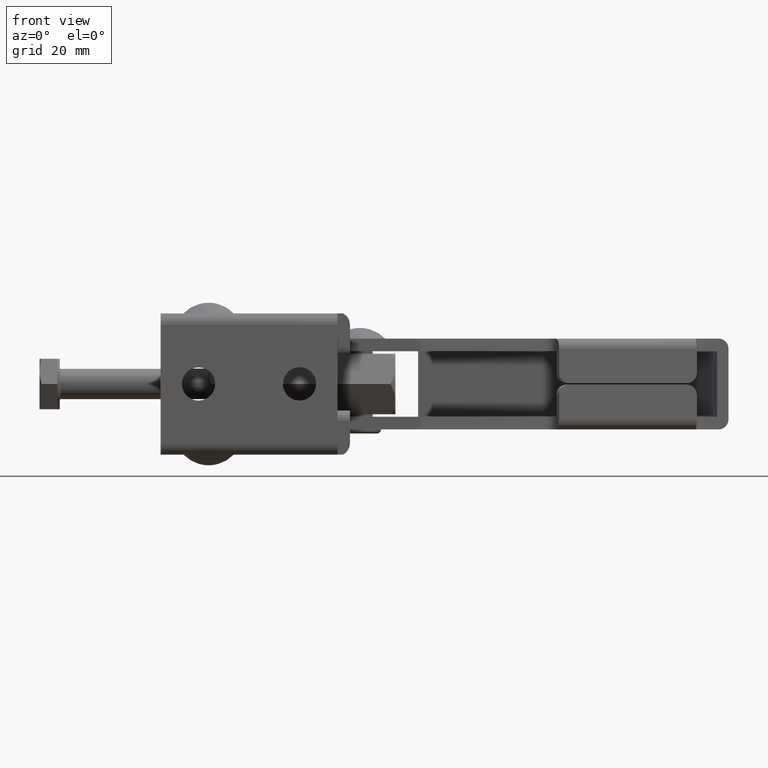
[diagram: clean part render]
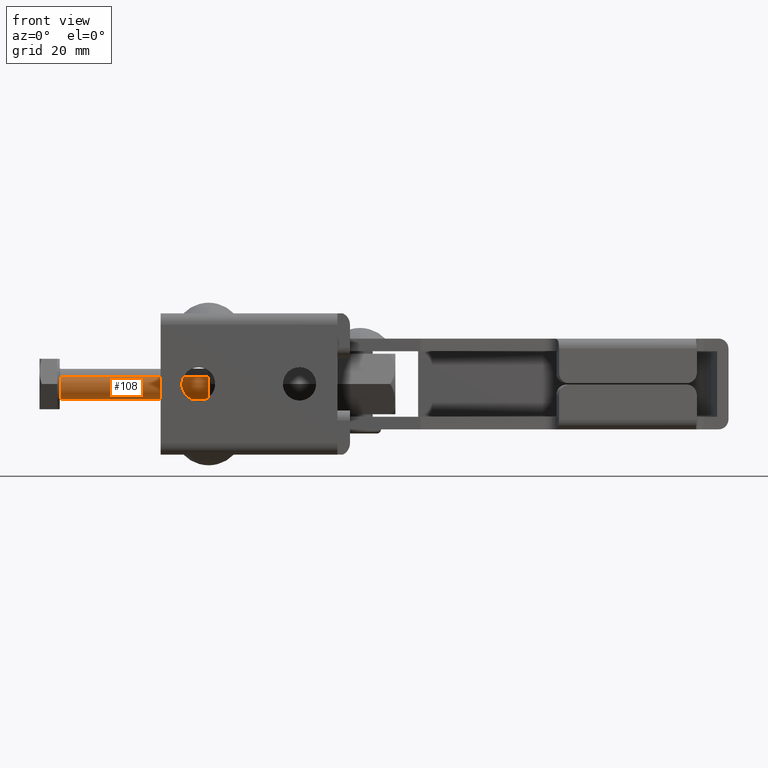
[diagram: same view with one face highlighted and labeled with its STEP entity id]
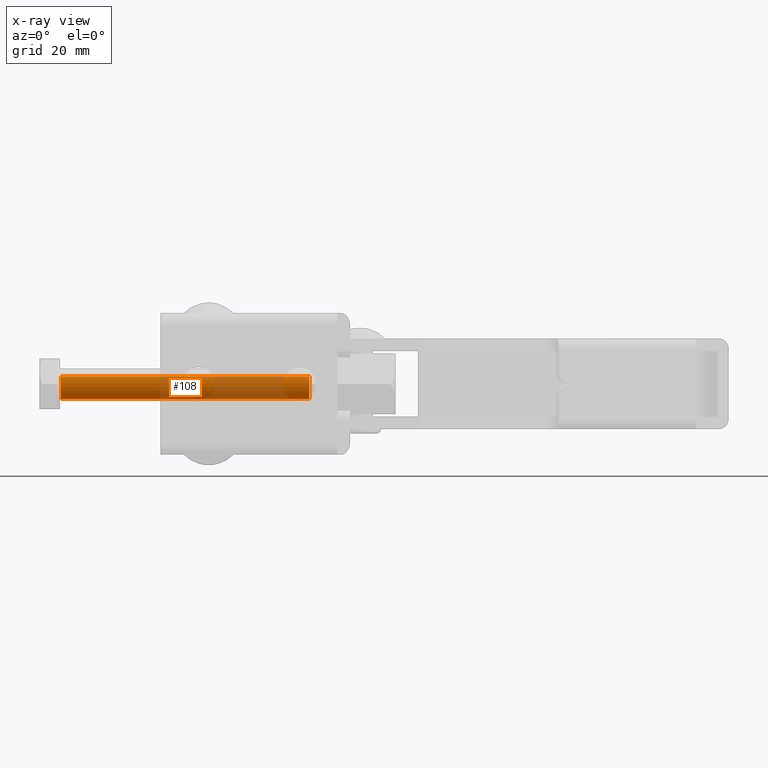
[diagram: x-ray of the same camera — body ghosted, the highlighted face saturated]
A machine part, front view. The second image highlights one B-rep face of the part: STEP entity #108.
The next image is the same camera in x-ray: the body ghosted, the highlighted face saturated — about 38% of this face is hidden behind the body in this view.
In plain terms, the highlighted cylindrical surface (edge-blend (fillet) strip) has radius 3 mm, axis along (-1, -0, -0).
Its self-contained STEP definition (entity closure, byte-faithful):
#108 = ADVANCED_FACE ( 'NONE', ( #5896 ), #5722, .T. ) ;
#298 = AXIS2_PLACEMENT_3D ( 'NONE', #6493, #3210, #7047 ) ;
#593 = DIRECTION ( 'NONE',  ( -1.000000000000000000, -3.302717421991266400E-030, -1.084683744678891200E-030 ) ) ;
#595 = CARTESIAN_POINT ( 'NONE',  ( -41.50000000000001400, 22.00000000000000400, 3.541791424061273700E-015 ) ) ;
#612 = DIRECTION ( 'NONE',  ( -1.000000000000000000, -3.302717421991266400E-030, -1.084683744678891200E-030 ) ) ;
#1081 = CARTESIAN_POINT ( 'NONE',  ( 11.94549999999999000, 24.59807621135331600, -1.500000000000000000 ) ) ;
#1727 = CARTESIAN_POINT ( 'NONE',  ( 11.94549999999999000, 19.40192378864668800, 1.500000000000006900 ) ) ;
#1846 = VERTEX_POINT ( 'NONE', #5636 ) ;
#2094 = CIRCLE ( 'NONE', #298, 3.000000000000000400 ) ;
#2222 = EDGE_CURVE ( 'NONE', #6963, #3087, #5788, .T. ) ;
#2270 = CARTESIAN_POINT ( 'NONE',  ( -41.50000000000001400, 24.59807621135331600, -1.499999999999999600 ) ) ;
#2688 = CARTESIAN_POINT ( 'NONE',  ( -41.50000000000001400, 19.40192378864668800, 1.500000000000006900 ) ) ;
#2700 = EDGE_CURVE ( 'NONE', #6656, #1846, #2094, .T. ) ;
#2817 = VECTOR ( 'NONE', #612, 1000.000000000000000 ) ;
#2956 = CARTESIAN_POINT ( 'NONE',  ( -37.25000000000002100, 19.40192378864668800, 1.500000000000007300 ) ) ;
#2989 = LINE ( 'NONE', #2688, #4268 ) ;
#3087 = VERTEX_POINT ( 'NONE', #1727 ) ;
#3210 = DIRECTION ( 'NONE',  ( 1.000000000000000000, 3.302717421991266400E-030, 1.084683744678891200E-030 ) ) ;
#3310 = ORIENTED_EDGE ( 'NONE', *, *, #6329, .F. ) ;
#3875 = CARTESIAN_POINT ( 'NONE',  ( 11.94549999999999000, 22.00000000000000400, 3.541791424061331300E-015 ) ) ;
#4268 = VECTOR ( 'NONE', #5960, 1000.000000000000000 ) ;
#4437 = DIRECTION ( 'NONE',  ( 0.0000000000000000000, -0.8660254037844381500, 0.5000000000000011100 ) ) ;
#4959 = DIRECTION ( 'NONE',  ( -1.000000000000000000, -3.302717421991266400E-030, -1.084683744678891200E-030 ) ) ;
#4986 = DIRECTION ( 'NONE',  ( 0.0000000000000000000, -0.8660254037844381500, 0.5000000000000011100 ) ) ;
#5003 = AXIS2_PLACEMENT_3D ( 'NONE', #595, #4959, #4986 ) ;
#5049 = ORIENTED_EDGE ( 'NONE', *, *, #2222, .T. ) ;
#5080 = ORIENTED_EDGE ( 'NONE', *, *, #2700, .T. ) ;
#5177 = EDGE_LOOP ( 'NONE', ( #3310, #5049, #6793, #5080 ) ) ;
#5466 = AXIS2_PLACEMENT_3D ( 'NONE', #3875, #593, #4437 ) ;
#5636 = CARTESIAN_POINT ( 'NONE',  ( -37.25000000000002100, 24.59807621135331600, -1.500000000000000000 ) ) ;
#5722 = CYLINDRICAL_SURFACE ( 'NONE', #5003, 3.000000000000000400 ) ;
#5788 = CIRCLE ( 'NONE', #5466, 3.000000000000000400 ) ;
#5896 = FACE_OUTER_BOUND ( 'NONE', #5177, .T. ) ;
#5960 = DIRECTION ( 'NONE',  ( -1.000000000000000000, -3.302717421991266400E-030, -1.084683744678891200E-030 ) ) ;
#6293 = EDGE_CURVE ( 'NONE', #3087, #6656, #2989, .T. ) ;
#6329 = EDGE_CURVE ( 'NONE', #6963, #1846, #7007, .T. ) ;
#6493 = CARTESIAN_POINT ( 'NONE',  ( -37.25000000000002100, 22.00000000000000400, 3.541791424061278100E-015 ) ) ;
#6656 = VERTEX_POINT ( 'NONE', #2956 ) ;
#6793 = ORIENTED_EDGE ( 'NONE', *, *, #6293, .T. ) ;
#6963 = VERTEX_POINT ( 'NONE', #1081 ) ;
#7007 = LINE ( 'NONE', #2270, #2817 ) ;
#7047 = DIRECTION ( 'NONE',  ( 0.0000000000000000000, 0.8660254037844381500, -0.5000000000000011100 ) ) ;